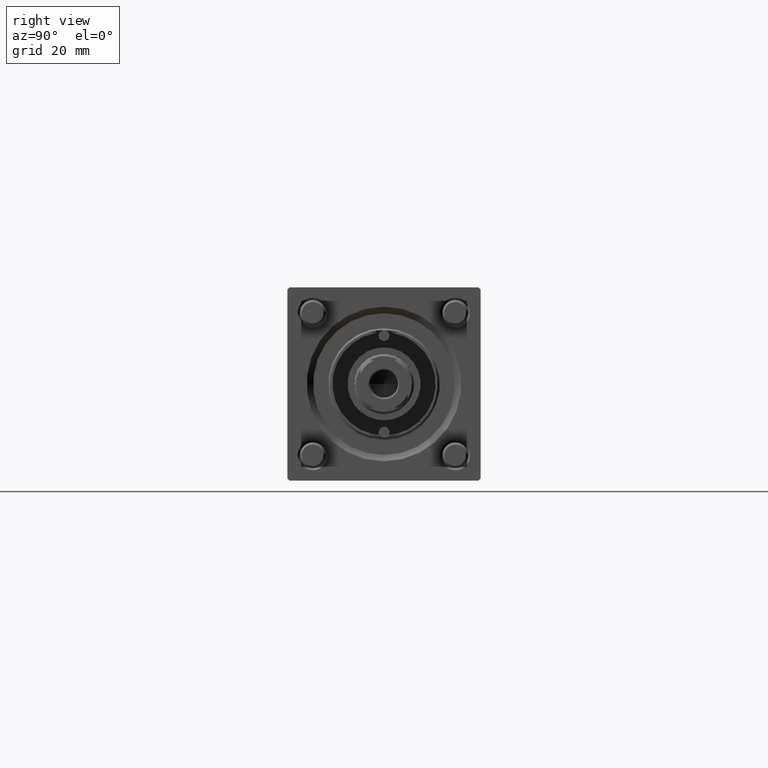
[diagram: clean part render]
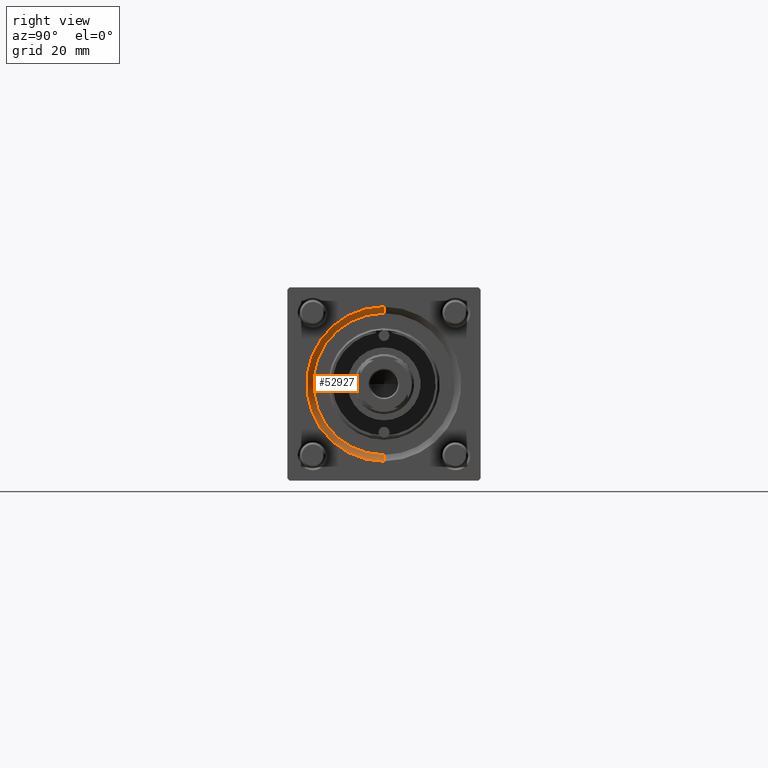
[diagram: same view with one face highlighted and labeled with its STEP entity id]
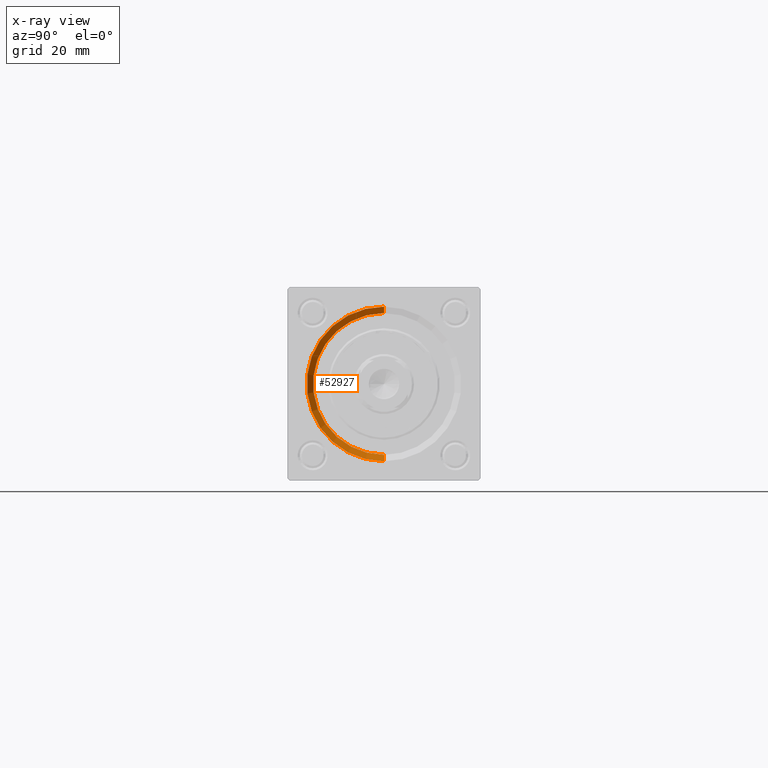
[diagram: x-ray of the same camera — body ghosted, the highlighted face saturated]
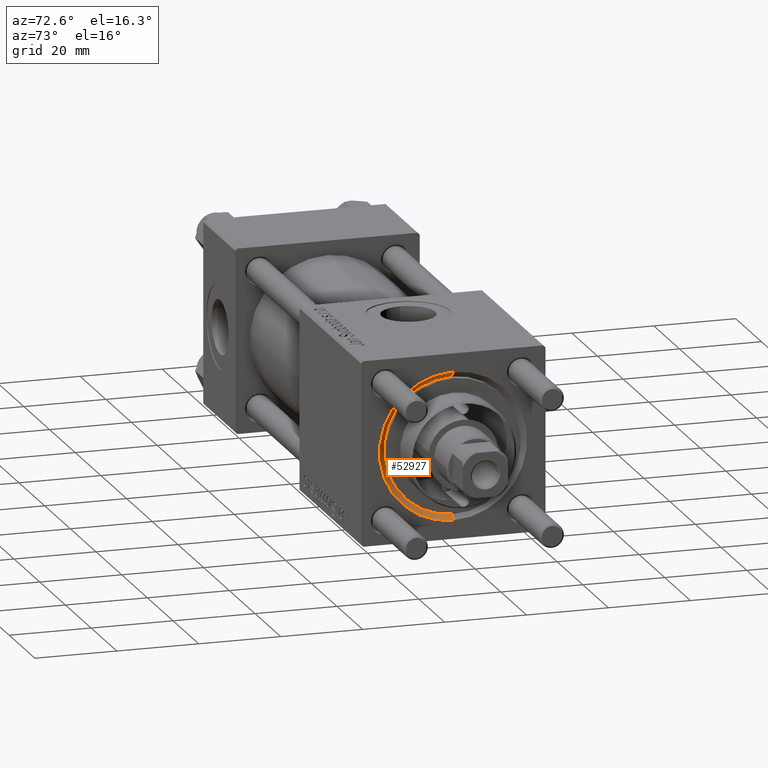
[diagram: same view with one face highlighted and labeled with its STEP entity id]
A machine part, right view. The second image highlights one B-rep face of the part: STEP entity #52927.
The next image is the same camera in x-ray: the body ghosted, the highlighted face saturated — about 0% of this face is hidden behind the body in this view.
A second angle (auxiliary view) of the same face is appended — the face is thin or edge-on in the first view.
In plain terms, the highlighted conical surface has half-angle 45 deg.
Its self-contained STEP definition (entity closure, byte-faithful):
#2684 = VERTEX_POINT ( 'NONE', #25536 ) ;
#3666 = LINE ( 'NONE', #21775, #11265 ) ;
#3843 = EDGE_LOOP ( 'NONE', ( #38827, #35044, #28043, #21179 ) ) ;
#7601 = DIRECTION ( 'NONE',  ( 0.7071067811865474617, 8.659560562354932858E-17, 0.7071067811865474617 ) ) ;
#7950 = DIRECTION ( 'NONE',  ( 0.000000000000000000, 0.000000000000000000, -1.000000000000000000 ) ) ;
#11265 = VECTOR ( 'NONE', #52304, 1000.000000000000114 ) ;
#11322 = DIRECTION ( 'NONE',  ( 0.000000000000000000, 0.000000000000000000, 1.000000000000000000 ) ) ;
#11428 = CARTESIAN_POINT ( 'NONE',  ( 123.0000000000000142, 0.000000000000000000, -18.00000000000000355 ) ) ;
#15642 = CONICAL_SURFACE ( 'NONE', #39569, 16.50000000000000000, 0.7853981633974482790 ) ;
#16888 = CARTESIAN_POINT ( 'NONE',  ( 121.5000000000000142, 0.000000000000000000, 0.000000000000000000 ) ) ;
#17572 = CARTESIAN_POINT ( 'NONE',  ( 121.5000000000000142, 2.020667218593133100E-15, 16.50000000000000000 ) ) ;
#17993 = EDGE_CURVE ( 'NONE', #34318, #2684, #47877, .T. ) ;
#21179 = ORIENTED_EDGE ( 'NONE', *, *, #30124, .F. ) ;
#21775 = CARTESIAN_POINT ( 'NONE',  ( 121.5000000000000142, 0.000000000000000000, -16.50000000000000000 ) ) ;
#21970 = CARTESIAN_POINT ( 'NONE',  ( 121.5000000000000142, 2.020667218593133100E-15, 16.50000000000000000 ) ) ;
#22332 = VECTOR ( 'NONE', #7601, 1000.000000000000114 ) ;
#24566 = CARTESIAN_POINT ( 'NONE',  ( 123.0000000000000142, 0.000000000000000000, 0.000000000000000000 ) ) ;
#25536 = CARTESIAN_POINT ( 'NONE',  ( 123.0000000000000142, 2.204364238465235822E-15, 18.00000000000000355 ) ) ;
#25954 = AXIS2_PLACEMENT_3D ( 'NONE', #36565, #49825, #46634 ) ;
#27173 = EDGE_CURVE ( 'NONE', #56580, #48501, #55390, .T. ) ;
#28043 = ORIENTED_EDGE ( 'NONE', *, *, #17993, .F. ) ;
#28585 = EDGE_CURVE ( 'NONE', #56580, #2684, #47063, .T. ) ;
#29848 = FACE_OUTER_BOUND ( 'NONE', #3843, .T. ) ;
#30124 = EDGE_CURVE ( 'NONE', #48501, #34318, #3666, .T. ) ;
#34318 = VERTEX_POINT ( 'NONE', #11428 ) ;
#35044 = ORIENTED_EDGE ( 'NONE', *, *, #28585, .T. ) ;
#36565 = CARTESIAN_POINT ( 'NONE',  ( 121.5000000000000142, 0.000000000000000000, 0.000000000000000000 ) ) ;
#38827 = ORIENTED_EDGE ( 'NONE', *, *, #27173, .F. ) ;
#39569 = AXIS2_PLACEMENT_3D ( 'NONE', #16888, #47413, #7950 ) ;
#41885 = CARTESIAN_POINT ( 'NONE',  ( 121.5000000000000142, 0.000000000000000000, -16.50000000000000000 ) ) ;
#42432 = DIRECTION ( 'NONE',  ( -1.000000000000000000, 0.000000000000000000, -0.000000000000000000 ) ) ;
#46634 = DIRECTION ( 'NONE',  ( 0.000000000000000000, 0.000000000000000000, 1.000000000000000000 ) ) ;
#47063 = LINE ( 'NONE', #21970, #22332 ) ;
#47413 = DIRECTION ( 'NONE',  ( 1.000000000000000000, 0.000000000000000000, 0.000000000000000000 ) ) ;
#47877 = CIRCLE ( 'NONE', #50654, 18.00000000000000355 ) ;
#48501 = VERTEX_POINT ( 'NONE', #41885 ) ;
#49825 = DIRECTION ( 'NONE',  ( 1.000000000000000000, 0.000000000000000000, 0.000000000000000000 ) ) ;
#50654 = AXIS2_PLACEMENT_3D ( 'NONE', #24566, #42432, #11322 ) ;
#52304 = DIRECTION ( 'NONE',  ( 0.7071067811865474617, 0.000000000000000000, -0.7071067811865474617 ) ) ;
#52927 = ADVANCED_FACE ( 'NONE', ( #29848 ), #15642, .F. ) ;
#55390 = CIRCLE ( 'NONE', #25954, 16.50000000000000000 ) ;
#56580 = VERTEX_POINT ( 'NONE', #17572 ) ;